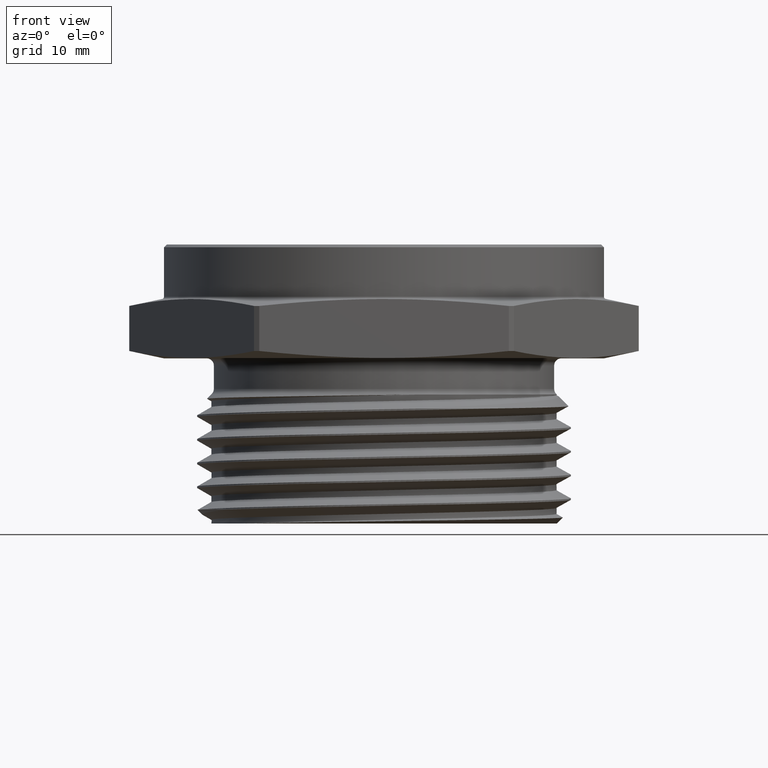
[diagram: clean part render]
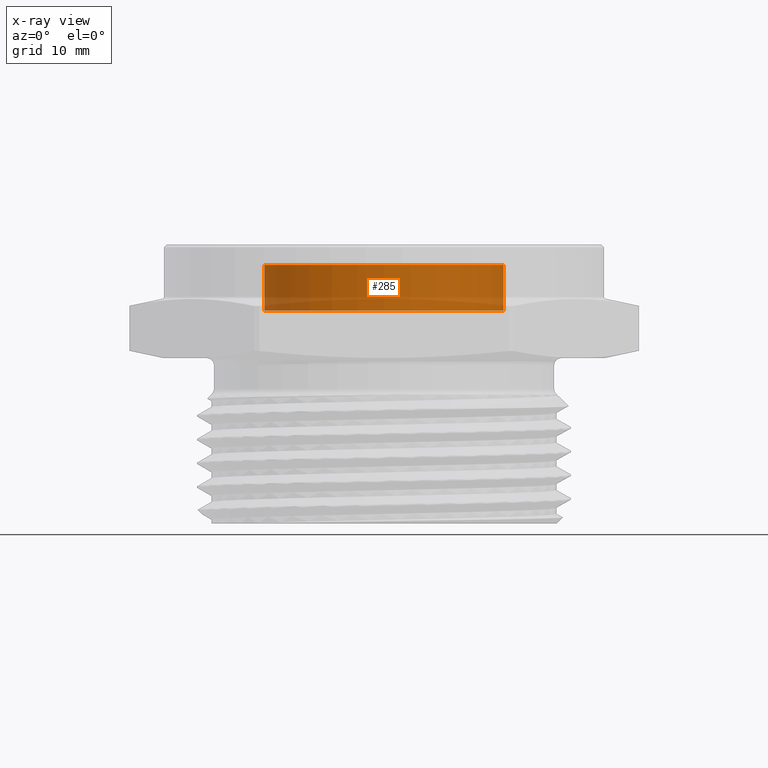
[diagram: x-ray — body ghosted, one internal face saturated and labeled with its STEP entity id]
A machine part, front view, then the same camera in x-ray: the body is ghosted and one INTERNAL B-rep face — a face not visible from any outside direction — is saturated and labeled: STEP entity #285.
In plain terms, the highlighted cylindrical surface (partial cylindrical patch) has radius 10.668 mm, axis along (-0, -0, 1).
Its self-contained STEP definition (entity closure, byte-faithful):
#114 = ORIENTED_EDGE ( 'NONE', *, *, #1981, .F. ) ;
#125 = ORIENTED_EDGE ( 'NONE', *, *, #1985, .F. ) ;
#160 = VERTEX_POINT ( 'NONE', #3354 ) ;
#233 = EDGE_LOOP ( 'NONE', ( #114, #125, #3034, #3035 ) ) ;
#285 = ADVANCED_FACE ( 'NONE', ( #2148 ), #2151, .T. ) ;
#642 = CARTESIAN_POINT ( 'NONE',  ( -0.4200000000000001500, 5.143516556418885600E-017, 0.1679999999999999500 ) ) ;
#643 = DIRECTION ( 'NONE',  ( -0.0000000000000000000, -0.0000000000000000000, 1.000000000000000000 ) ) ;
#644 = CARTESIAN_POINT ( 'NONE',  ( 0.4200000000000001500, 0.0000000000000000000, 0.1679999999999999500 ) ) ;
#645 = DIRECTION ( 'NONE',  ( -0.0000000000000000000, -0.0000000000000000000, 1.000000000000000000 ) ) ;
#653 = CARTESIAN_POINT ( 'NONE',  ( 0.0000000000000000000, 0.0000000000000000000, 0.1679999999999999500 ) ) ;
#654 = DIRECTION ( 'NONE',  ( 0.0000000000000000000, 0.0000000000000000000, -1.000000000000000000 ) ) ;
#655 = DIRECTION ( 'NONE',  ( -1.000000000000000000, 0.0000000000000000000, 0.0000000000000000000 ) ) ;
#657 = CARTESIAN_POINT ( 'NONE',  ( 0.0000000000000000000, 0.0000000000000000000, 0.3279999999999999600 ) ) ;
#658 = DIRECTION ( 'NONE',  ( 0.0000000000000000000, 0.0000000000000000000, -1.000000000000000000 ) ) ;
#659 = DIRECTION ( 'NONE',  ( -1.000000000000000000, 0.0000000000000000000, 0.0000000000000000000 ) ) ;
#844 = CARTESIAN_POINT ( 'NONE',  ( 0.4200000000000001500, 0.0000000000000000000, 0.1679999999999999500 ) ) ;
#855 = CARTESIAN_POINT ( 'NONE',  ( 0.4200000000000001500, 0.0000000000000000000, 0.3279999999999999600 ) ) ;
#874 = CARTESIAN_POINT ( 'NONE',  ( -0.4200000000000001500, 5.143516556418885600E-017, 0.1679999999999999500 ) ) ;
#1236 = DIRECTION ( 'NONE',  ( 1.000000000000000000, 0.0000000000000000000, 0.0000000000000000000 ) ) ;
#1237 = CARTESIAN_POINT ( 'NONE',  ( 0.0000000000000000000, 0.0000000000000000000, 0.1679999999999999500 ) ) ;
#1238 = DIRECTION ( 'NONE',  ( -0.0000000000000000000, -0.0000000000000000000, 1.000000000000000000 ) ) ;
#1981 = EDGE_CURVE ( 'NONE', #2120, #160, #2367, .T. ) ;
#1984 = EDGE_CURVE ( 'NONE', #2090, #2101, #2372, .T. ) ;
#1985 = EDGE_CURVE ( 'NONE', #2090, #2120, #2371, .T. ) ;
#1986 = EDGE_CURVE ( 'NONE', #2101, #160, #2375, .T. ) ;
#2090 = VERTEX_POINT ( 'NONE', #844 ) ;
#2101 = VERTEX_POINT ( 'NONE', #855 ) ;
#2120 = VERTEX_POINT ( 'NONE', #874 ) ;
#2148 = FACE_OUTER_BOUND ( 'NONE', #233, .T. ) ;
#2151 = CYLINDRICAL_SURFACE ( 'NONE', #2398, 0.4200000000000001500 ) ;
#2367 = LINE ( 'NONE', #642, #2369 ) ;
#2369 = VECTOR ( 'NONE', #643, 39.37007874015748100 ) ;
#2371 = CIRCLE ( 'NONE', #2504, 0.4200000000000001500 ) ;
#2372 = LINE ( 'NONE', #644, #2374 ) ;
#2374 = VECTOR ( 'NONE', #645, 39.37007874015748100 ) ;
#2375 = CIRCLE ( 'NONE', #2505, 0.4200000000000001500 ) ;
#2398 = AXIS2_PLACEMENT_3D ( 'NONE', #1237, #1238, #1236 ) ;
#2504 = AXIS2_PLACEMENT_3D ( 'NONE', #653, #654, #655 ) ;
#2505 = AXIS2_PLACEMENT_3D ( 'NONE', #657, #658, #659 ) ;
#3034 = ORIENTED_EDGE ( 'NONE', *, *, #1984, .T. ) ;
#3035 = ORIENTED_EDGE ( 'NONE', *, *, #1986, .T. ) ;
#3354 = CARTESIAN_POINT ( 'NONE',  ( -0.4200000000000001500, 5.143516556418885600E-017, 0.3279999999999999600 ) ) ;